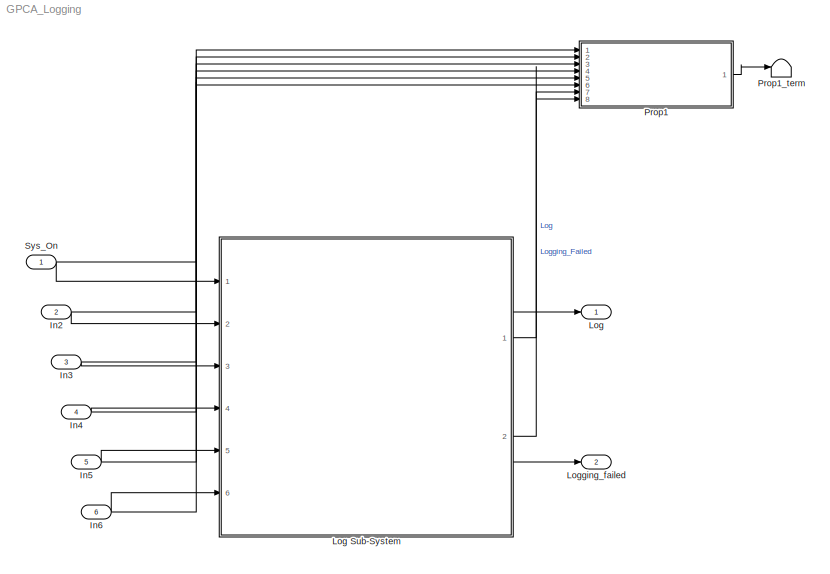
MODEL GPCA_Logging
KIND model
BLOCK [Inport] In2
  IconDisplay = Port number
  Port = 2
  SID = 2
BLOCK [Inport] In3
  IconDisplay = Port number
  Port = 3
  SID = 3
BLOCK [Inport] In4
  IconDisplay = Port number
  Port = 4
  SID = 4
BLOCK [Inport] In5
  IconDisplay = Port number
  Port = 5
  SID = 5
BLOCK [Inport] In6
  IconDisplay = Port number
  Port = 6
  SID = 6
BLOCK [Outport] Log
  IconDisplay = Port number
  SID = 8
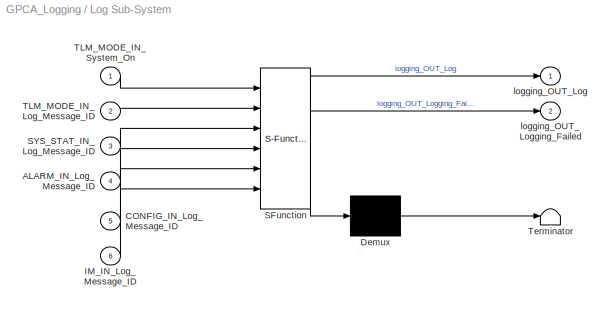
BLOCK [SubSystem] Log Sub-System
  ErrorFcn = Stateflow.Translate.translate
  PermitHierarchicalResolution = ExplicitOnly
  Ports = [6, 2]
  RequestExecContextInheritance = off
  SFBlockType = Chart
  SID = 7
  TreatAsAtomicUnit = on
  Variant = off
BLOCK [Demux] Log Sub-System/ Demux 
  Outputs = 1
  Ports = [1, 1]
  SID = 7::345
BLOCK [S-Function] Log Sub-System/ SFunction 
  EnableBusSupport = on
  FunctionName = sf_sfun
  PortCounts = [6 3]
  Ports = [6, 3]
  SFunctionDeploymentMode = off
  SID = 7::344
  Tag = Stateflow S-Function GPCA_Logging 2
BLOCK [Terminator] Log Sub-System/ Terminator 
  SID = 7::346
BLOCK [Inport] Log Sub-System/ALARM_IN_Log_Message_ID
  IconDisplay = Port number
  Port = 4
  SID = 7::339
BLOCK [Inport] Log Sub-System/CONFIG_IN_Log_Message_ID
  IconDisplay = Port number
  Port = 5
  SID = 7::340
BLOCK [Inport] Log Sub-System/IM_IN_Log_Message_ID
  IconDisplay = Port number
  Port = 6
  SID = 7::341
BLOCK [Inport] Log Sub-System/SYS_STAT_IN_Log_Message_ID
  IconDisplay = Port number
  Port = 3
  SID = 7::342
BLOCK [Inport] Log Sub-System/TLM_MODE_IN_Log_Message_ID
  IconDisplay = Port number
  Port = 2
  SID = 7::343
BLOCK [Inport] Log Sub-System/TLM_MODE_IN_System_On
  IconDisplay = Port number
  SID = 7::338
BLOCK [Outport] Log Sub-System/logging_OUT_Log
  IconDisplay = Port number
  SID = 7::335
BLOCK [Outport] Log Sub-System/logging_OUT_Logging_Failed
  IconDisplay = Port number
  Port = 2
  SID = 7::337
BLOCK [Outport] Logging_failed
  IconDisplay = Port number
  Port = 2
  SID = 9
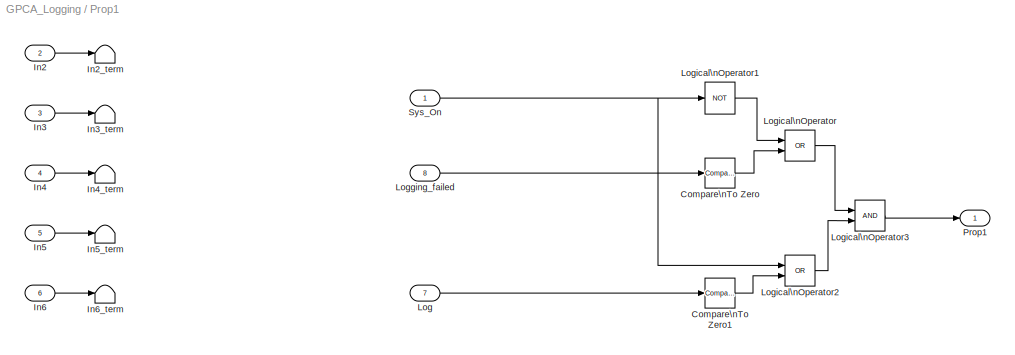
BLOCK [SubSystem] Prop1
  Ports = [8, 1]
  RequestExecContextInheritance = off
  SID = 11
  TreatAsAtomicUnit = on
  Variant = off
BLOCK [Reference] Prop1/Compare\nTo Zero  REF=simulink/Logic and Bit\nOperations/Compare\nTo Zero
  OutDataTypeStr = boolean
  Ports = [1, 1]
  SID = 32
  SourceBlock = simulink/Logic and Bit\nOperations/Compare\nTo Zero
  SourceType = Compare To Zero
  ZeroCross = on
  relop = ==
BLOCK [Reference] Prop1/Compare\nTo Zero1  REF=simulink/Logic and Bit\nOperations/Compare\nTo Zero
  OutDataTypeStr = boolean
  Ports = [1, 1]
  SID = 34
  SourceBlock = simulink/Logic and Bit\nOperations/Compare\nTo Zero
  SourceType = Compare To Zero
  ZeroCross = on
  relop = ==
BLOCK [Inport] Prop1/In2
  IconDisplay = Port number
  Port = 2
  SID = 14
BLOCK [Terminator] Prop1/In2_term
  SID = 15
BLOCK [Inport] Prop1/In3
  IconDisplay = Port number
  Port = 3
  SID = 16
BLOCK [Terminator] Prop1/In3_term
  SID = 17
BLOCK [Inport] Prop1/In4
  IconDisplay = Port number
  Port = 4
  SID = 18
BLOCK [Terminator] Prop1/In4_term
  SID = 19
BLOCK [Inport] Prop1/In5
  IconDisplay = Port number
  Port = 5
  SID = 20
BLOCK [Terminator] Prop1/In5_term
  SID = 21
BLOCK [Inport] Prop1/In6
  IconDisplay = Port number
  Port = 6
  SID = 22
BLOCK [Terminator] Prop1/In6_term
  SID = 23
BLOCK [Inport] Prop1/Log
  IconDisplay = Port number
  Port = 7
  SID = 24
BLOCK [Inport] Prop1/Logging_failed
  IconDisplay = Port number
  Port = 8
  SID = 26
BLOCK [Logic] Prop1/Logical\nOperator
  AllPortsSameDT = off
  Operator = OR
  OutDataTypeStr = boolean
  Ports = [2, 1]
  SID = 30
BLOCK [Logic] Prop1/Logical\nOperator1
  AllPortsSameDT = off
  Operator = NOT
  OutDataTypeStr = boolean
  Ports = [1, 1]
  SID = 31
BLOCK [Logic] Prop1/Logical\nOperator2
  AllPortsSameDT = off
  Operator = OR
  OutDataTypeStr = boolean
  Ports = [2, 1]
  SID = 33
BLOCK [Logic] Prop1/Logical\nOperator3
  AllPortsSameDT = off
  OutDataTypeStr = boolean
  Ports = [2, 1]
  SID = 36
BLOCK [Outport] Prop1/Prop1
  IconDisplay = Port number
  SID = 28
BLOCK [Inport] Prop1/Sys_On
  IconDisplay = Port number
  SID = 12
BLOCK [Terminator] Prop1_term
  SID = 29
BLOCK [Inport] Sys_On
  IconDisplay = Port number
  SID = 1
NET In2:1 -> Log Sub-System:2, Prop1:2
NET In3:1 -> Log Sub-System:3, Prop1:3
NET In4:1 -> Log Sub-System:4, Prop1:4
NET In5:1 -> Log Sub-System:5, Prop1:5
NET In6:1 -> Log Sub-System:6, Prop1:6
LINE Log Sub-System/ Demux :1 -> Log Sub-System/ Terminator :1
LINE Log Sub-System/ SFunction :1 -> Log Sub-System/ Demux :1
LINE Log Sub-System/ SFunction :2 -> Log Sub-System/logging_OUT_Log:1
LINE Log Sub-System/ SFunction :3 -> Log Sub-System/logging_OUT_Logging_Failed:1
LINE Log Sub-System/ALARM_IN_Log_Message_ID:1 -> Log Sub-System/ SFunction :4
LINE Log Sub-System/CONFIG_IN_Log_Message_ID:1 -> Log Sub-System/ SFunction :5
LINE Log Sub-System/IM_IN_Log_Message_ID:1 -> Log Sub-System/ SFunction :6
LINE Log Sub-System/SYS_STAT_IN_Log_Message_ID:1 -> Log Sub-System/ SFunction :3
LINE Log Sub-System/TLM_MODE_IN_Log_Message_ID:1 -> Log Sub-System/ SFunction :2
LINE Log Sub-System/TLM_MODE_IN_System_On:1 -> Log Sub-System/ SFunction :1
NET Log Sub-System:1 -> Log:1, Prop1:7
NET Log Sub-System:2 -> Logging_failed:1, Prop1:8
LINE Prop1/Compare\nTo Zero1:1 -> Prop1/Logical\nOperator2:2
LINE Prop1/Compare\nTo Zero:1 -> Prop1/Logical\nOperator:2
LINE Prop1/In2:1 -> Prop1/In2_term:1
LINE Prop1/In3:1 -> Prop1/In3_term:1
LINE Prop1/In4:1 -> Prop1/In4_term:1
LINE Prop1/In5:1 -> Prop1/In5_term:1
LINE Prop1/In6:1 -> Prop1/In6_term:1
LINE Prop1/Log:1 -> Prop1/Compare\nTo Zero1:1
LINE Prop1/Logging_failed:1 -> Prop1/Compare\nTo Zero:1
LINE Prop1/Logical\nOperator1:1 -> Prop1/Logical\nOperator:1
LINE Prop1/Logical\nOperator2:1 -> Prop1/Logical\nOperator3:2
LINE Prop1/Logical\nOperator3:1 -> Prop1/Prop1:1
LINE Prop1/Logical\nOperator:1 -> Prop1/Logical\nOperator3:1
NET Prop1/Sys_On:1 -> Prop1/Logical\nOperator1:1, Prop1/Logical\nOperator2:1
LINE Prop1:1 -> Prop1_term:1
NET Sys_On:1 -> Log Sub-System:1, Prop1:1
note: NET lines group one-source signal fan-out (src -> all destinations, sorted); 1:1 wires keep LINE
CHART Log Sub-System states=4 transitions=6
  STATE_LABEL 'NOT_ON\\nentry: logging_OUT_Log=0;\\nduring : logging_OUT_Log=0;\\nexit: logging_OUT_Log=0;'
  STATE_LABEL 'LOG\\nentry: logging_OUT_Logging_Failed=0;\\nlogging_OUT_Log= writeLog(TLM_MODE_IN_Log_Message_ID, SYS_STAT_IN_Log_Message_ID, ALARM_IN_Log_Message_ID, CONFIG_IN_Log_Message_ID, IM_IN_Log_Message_ID)\\nduring: logging_OUT_Logging_Failed=0;\\nlogging_OUT_Log= writeLog(TLM_MODE_IN_Log_Message_ID, SYS_STAT_IN_Log_Message_ID, ALARM_IN_Log_Message_ID, CONFIG_IN_Log_Message_ID, IM_IN_Log_Message_ID)\\nexit: ...<+187ch>'
  STATE_LABEL 'Functionality shall be added later. For now its just a place holder'
  STATE_LABEL 'logging_OUT_Log= writeLog(TLM_MODE_IN_Log_Message_ID, SYS_STAT_IN_Log_Message_ID, ALARM_IN_Log_Message_ID, CONFIG_IN_Log_Message_ID, IM_IN_Log_Message_ID)'
